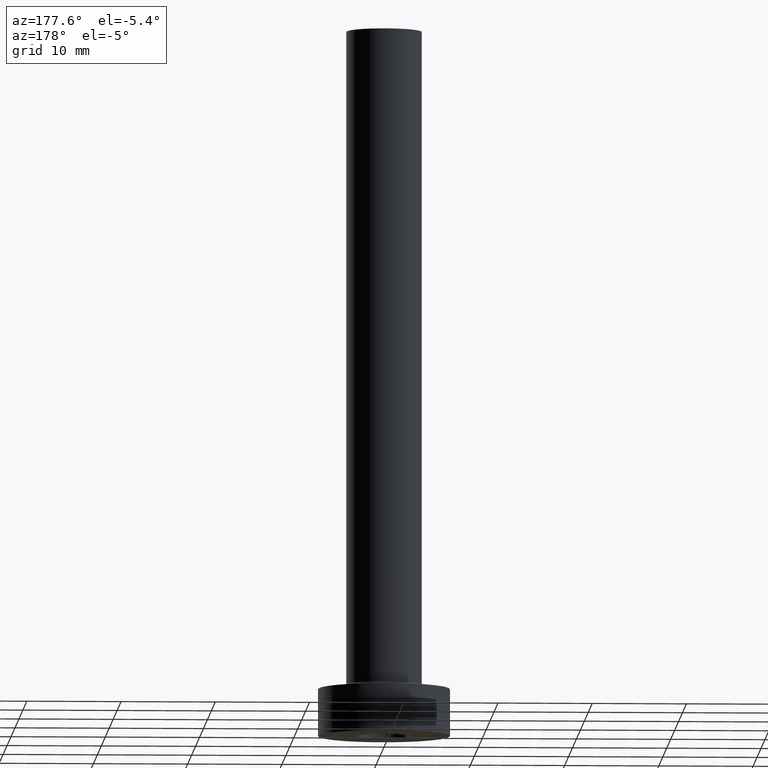
[diagram: clean part render]
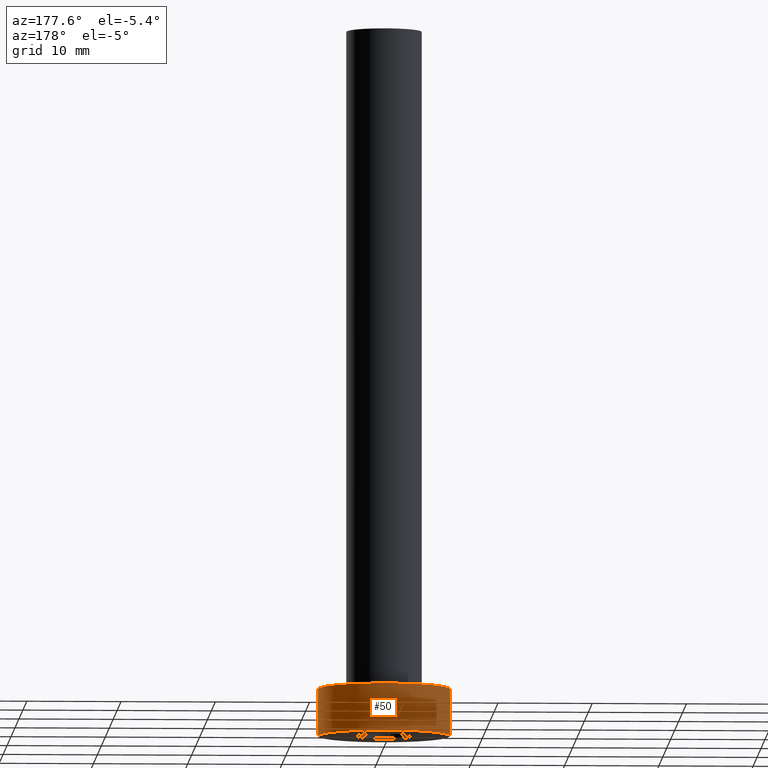
[diagram: same view with one face highlighted and labeled with its STEP entity id]
A machine part, auxiliary view. The second image highlights one B-rep face of the part: STEP entity #50.
In plain terms, the highlighted cylindrical surface (partial cylindrical patch) has radius 7 mm, axis along (-0, -0, -1).
Its self-contained STEP definition (entity closure, byte-faithful):
#9 = ORIENTED_EDGE ( 'NONE', *, *, #304, .T. ) ;
#14 = DIRECTION ( 'NONE',  ( 1.000000000000000000, 0.000000000000000000, 0.000000000000000000 ) ) ;
#19 = VERTEX_POINT ( 'NONE', #225 ) ;
#21 = DIRECTION ( 'NONE',  ( -0.000000000000000000, -0.000000000000000000, -1.000000000000000000 ) ) ;
#34 = CARTESIAN_POINT ( 'NONE',  ( -7.000000000000000000, 0.000000000000000000, 0.000000000000000000 ) ) ;
#43 = AXIS2_PLACEMENT_3D ( 'NONE', #291, #362, #224 ) ;
#50 = ADVANCED_FACE ( 'NONE', ( #142 ), #262, .T. ) ;
#55 = EDGE_LOOP ( 'NONE', ( #119, #365, #9, #228 ) ) ;
#58 = AXIS2_PLACEMENT_3D ( 'NONE', #442, #380, #97 ) ;
#63 = VERTEX_POINT ( 'NONE', #34 ) ;
#75 = EDGE_CURVE ( 'NONE', #19, #63, #248, .T. ) ;
#92 = DIRECTION ( 'NONE',  ( 0.000000000000000000, 0.000000000000000000, 1.000000000000000000 ) ) ;
#97 = DIRECTION ( 'NONE',  ( 1.000000000000000000, 0.000000000000000000, 0.000000000000000000 ) ) ;
#119 = ORIENTED_EDGE ( 'NONE', *, *, #204, .F. ) ;
#124 = CIRCLE ( 'NONE', #167, 7.000000000000000000 ) ;
#127 = CARTESIAN_POINT ( 'NONE',  ( 0.000000000000000000, 0.000000000000000000, 5.000000000000000000 ) ) ;
#142 = FACE_OUTER_BOUND ( 'NONE', #55, .T. ) ;
#152 = DIRECTION ( 'NONE',  ( -0.000000000000000000, -0.000000000000000000, -1.000000000000000000 ) ) ;
#156 = VECTOR ( 'NONE', #152, 1000.000000000000000 ) ;
#167 = AXIS2_PLACEMENT_3D ( 'NONE', #127, #92, #14 ) ;
#198 = LINE ( 'NONE', #373, #280 ) ;
#204 = EDGE_CURVE ( 'NONE', #301, #19, #124, .T. ) ;
#210 = VERTEX_POINT ( 'NONE', #454 ) ;
#223 = EDGE_CURVE ( 'NONE', #301, #210, #198, .T. ) ;
#224 = DIRECTION ( 'NONE',  ( -1.000000000000000000, 0.000000000000000000, 0.000000000000000000 ) ) ;
#225 = CARTESIAN_POINT ( 'NONE',  ( -7.000000000000000000, 0.000000000000000000, 5.000000000000000000 ) ) ;
#228 = ORIENTED_EDGE ( 'NONE', *, *, #75, .F. ) ;
#248 = LINE ( 'NONE', #385, #156 ) ;
#262 = CYLINDRICAL_SURFACE ( 'NONE', #43, 7.000000000000000000 ) ;
#280 = VECTOR ( 'NONE', #21, 1000.000000000000000 ) ;
#291 = CARTESIAN_POINT ( 'NONE',  ( 0.000000000000000000, 0.000000000000000000, 5.000000000000000000 ) ) ;
#298 = CIRCLE ( 'NONE', #58, 7.000000000000000000 ) ;
#301 = VERTEX_POINT ( 'NONE', #312 ) ;
#304 = EDGE_CURVE ( 'NONE', #210, #63, #298, .T. ) ;
#312 = CARTESIAN_POINT ( 'NONE',  ( 7.000000000000000000, 8.572527594031473190E-16, 5.000000000000000000 ) ) ;
#362 = DIRECTION ( 'NONE',  ( -0.000000000000000000, -0.000000000000000000, -1.000000000000000000 ) ) ;
#365 = ORIENTED_EDGE ( 'NONE', *, *, #223, .T. ) ;
#373 = CARTESIAN_POINT ( 'NONE',  ( 7.000000000000000000, 8.572527594031473190E-16, 5.000000000000000000 ) ) ;
#380 = DIRECTION ( 'NONE',  ( 0.000000000000000000, 0.000000000000000000, 1.000000000000000000 ) ) ;
#385 = CARTESIAN_POINT ( 'NONE',  ( -7.000000000000000000, 0.000000000000000000, 5.000000000000000000 ) ) ;
#442 = CARTESIAN_POINT ( 'NONE',  ( 0.000000000000000000, 0.000000000000000000, 0.000000000000000000 ) ) ;
#454 = CARTESIAN_POINT ( 'NONE',  ( 7.000000000000000000, 8.572527594031473190E-16, 0.000000000000000000 ) ) ;